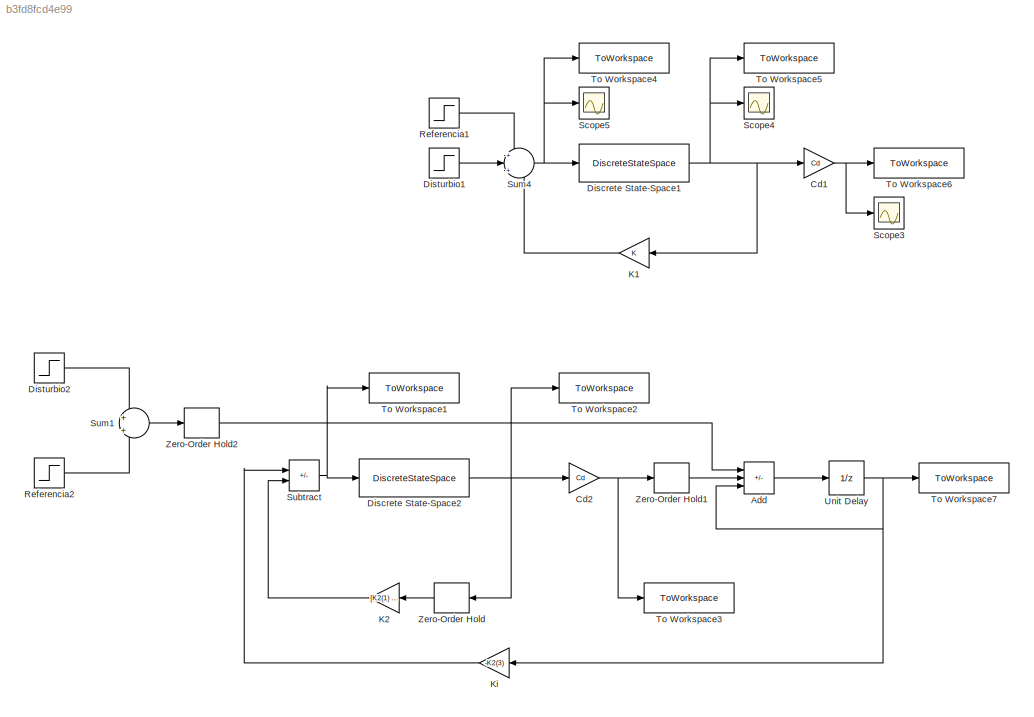
MODEL slx_b3fd8fcd4e99
KIND model
CONFIG AbsTol = auto
CONFIG EnableMultiTasking = off
CONFIG FixedStep = auto
CONFIG MaxStep = auto
CONFIG MinStep = auto
CONFIG RelTol = 1e-3
CONFIG SampleTimeConstraint = Unconstrained
CONFIG SolverName = VariableStepAuto
CONFIG StartTime = 0.0
CONFIG StopTime = 30.0
BLOCK [Sum] Add
  IconShape = rectangular
  Inputs = +-+
BLOCK [Gain] Cd1
  Gain = Cd
  Multiplication = Matrix(K*u)
BLOCK [Gain] Cd2
  Gain = Cd
  Multiplication = Matrix(K*u)
BLOCK [DiscreteStateSpace] Discrete State-Space1
  A = F
  B = H
  C = [1 0; 0 1]
  D = [0;0]
  SampleTime = T0
BLOCK [DiscreteStateSpace] Discrete State-Space2
  A = F
  B = H
  C = [1 0; 0 1]
  D = [0;0]
  SampleTime = T0
BLOCK [Step] Disturbio1
  After = d
  SampleTime = 0
  Time = td
BLOCK [Step] Disturbio2
  After = d
  SampleTime = 0
  Time = td
BLOCK [Gain] K1
  Gain = K
  Multiplication = Matrix(K*u)
BLOCK [Gain] K2
  Gain = [K2(1) K2(2)]
  Multiplication = Matrix(K*u)
BLOCK [Gain] Ki
  Gain = -K2(3)
BLOCK [Step] Referencia1
  SampleTime = 0
  Time = 0
BLOCK [Step] Referencia2
  After = R
  SampleTime = 0
  Time = 0
BLOCK [Scope] Scope3
  Floating = off
  NumInputPorts = 1
  ScopeSpecificationString = Simulink.scopes.TimeScopeBlockCfg('CurrentConfiguration', extmgr.ConfigurationSet(extmgr.Configuration('Core','General UI',true),extmgr.Configuration('Core','Source UI',true),extmgr.Configuration('Sources','WiredSimulink',true,'DataLoggingVariableName','ScopeData3'),extmgr.Configuration('Visuals','Time Domain',true,'SerializedDisplays',{struct('MinYLimReal','-0.93493','MaxYLimReal','8.41433','YLab...<+1362ch>
BLOCK [Scope] Scope4
  Floating = off
  NumInputPorts = 1
  ScopeSpecificationString = Simulink.scopes.TimeScopeBlockCfg('CurrentConfiguration', extmgr.ConfigurationSet(extmgr.Configuration('Core','General UI',true),extmgr.Configuration('Core','Source UI',true),extmgr.Configuration('Sources','WiredSimulink',true,'DataLoggingVariableName','ScopeData4'),extmgr.Configuration('Visuals','Time Domain',true,'SerializedDisplays',{struct('MinYLimReal','-0.98552','MaxYLimReal','7.7198','YLabe...<+1433ch>
BLOCK [Scope] Scope5
  Floating = off
  NumInputPorts = 1
  ScopeSpecificationString = Simulink.scopes.TimeScopeBlockCfg('CurrentConfiguration', extmgr.ConfigurationSet(extmgr.Configuration('Core','General UI',true),extmgr.Configuration('Core','Source UI',true),extmgr.Configuration('Sources','WiredSimulink',true,'DataLoggingVariableName','ScopeData5'),extmgr.Configuration('Visuals','Time Domain',true,'SerializedDisplays',{struct('MinYLimReal','0.18368','MaxYLimReal','8.34692','YLabe...<+1390ch>
BLOCK [Sum] Subtract
  IconShape = rectangular
  Inputs = +-
BLOCK [Sum] Sum1
  Inputs = +|+
BLOCK [Sum] Sum4
  Inputs = +|+|-
BLOCK [ToWorkspace] To Workspace1
  FixptAsFi = on
  MaxDataPoints = inf
  SampleTime = -1
  SaveFormat = Timeseries
  VariableName = u2
BLOCK [ToWorkspace] To Workspace2
  FixptAsFi = on
  MaxDataPoints = inf
  SampleTime = -1
  SaveFormat = Timeseries
  VariableName = x2
BLOCK [ToWorkspace] To Workspace3
  FixptAsFi = on
  MaxDataPoints = inf
  SampleTime = -1
  SaveFormat = Timeseries
  VariableName = y2
BLOCK [ToWorkspace] To Workspace4
  FixptAsFi = on
  MaxDataPoints = inf
  SampleTime = T0
  SaveFormat = Timeseries
  VariableName = u1
BLOCK [ToWorkspace] To Workspace5
  FixptAsFi = on
  MaxDataPoints = inf
  SampleTime = T0
  SaveFormat = Timeseries
  VariableName = x1
BLOCK [ToWorkspace] To Workspace6
  FixptAsFi = on
  MaxDataPoints = inf
  SampleTime = T0
  SaveFormat = Timeseries
  VariableName = y1
BLOCK [ToWorkspace] To Workspace7
  FixptAsFi = on
  MaxDataPoints = inf
  SampleTime = -1
  SaveFormat = Timeseries
  VariableName = q
BLOCK [UnitDelay] Unit Delay
  HasFrameUpgradeWarning = on
  SampleTime = -1
BLOCK [ZeroOrderHold] Zero-Order Hold
  SampleTime = T0
BLOCK [ZeroOrderHold] Zero-Order Hold1
  SampleTime = T0
BLOCK [ZeroOrderHold] Zero-Order Hold2
  SampleTime = T0
LINE Add:1 -> Unit Delay:1
NET Cd1:1 -> Scope3:1, To Workspace6:1
NET Cd2:1 -> To Workspace3:1, Zero-Order Hold1:1
NET Discrete State-Space1:1 -> Cd1:1, K1:1, Scope4:1, To Workspace5:1
NET Discrete State-Space2:1 -> Cd2:1, To Workspace2:1, Zero-Order Hold:1
LINE Disturbio1:1 -> Sum4:2
LINE Disturbio2:1 -> Sum1:1
LINE K1:1 -> Sum4:3
LINE K2:1 -> Subtract:2
LINE Ki:1 -> Subtract:1
LINE Referencia1:1 -> Sum4:1
LINE Referencia2:1 -> Sum1:2
NET Subtract:1 -> Discrete State-Space2:1, To Workspace1:1
LINE Sum1:1 -> Zero-Order Hold2:1
NET Sum4:1 -> Discrete State-Space1:1, Scope5:1, To Workspace4:1
NET Unit Delay:1 -> Add:3, Ki:1, To Workspace7:1
LINE Zero-Order Hold1:1 -> Add:2
LINE Zero-Order Hold2:1 -> Add:1
LINE Zero-Order Hold:1 -> K2:1
note: NET lines group one-source signal fan-out (src -> all destinations, sorted); 1:1 wires keep LINE
